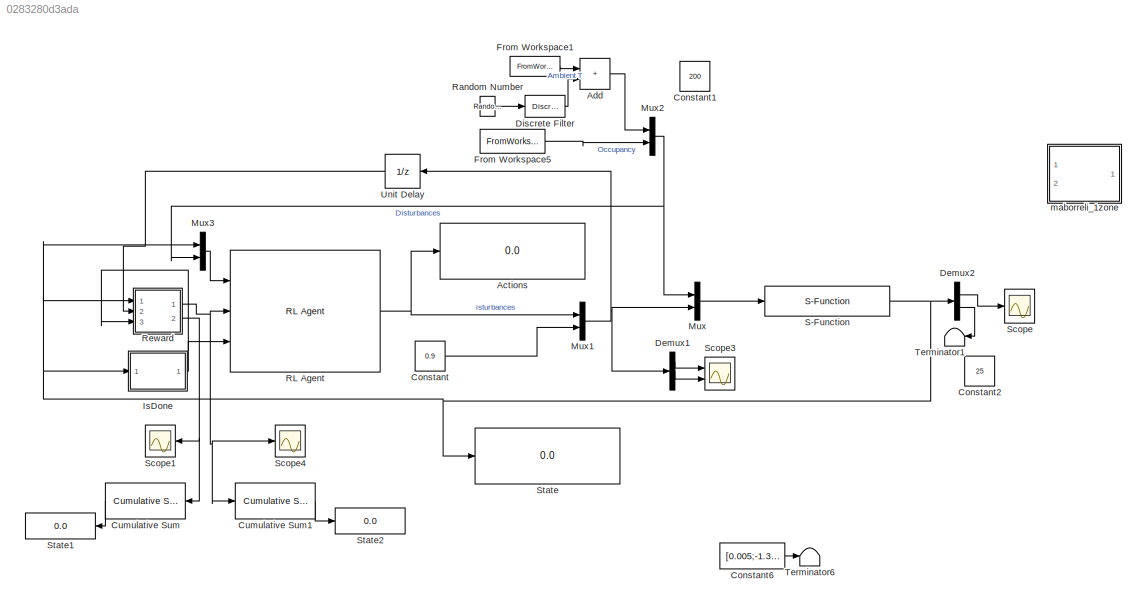
MODEL slx_0283280d3ada
KIND model
CONFIG AbsTol = auto
CONFIG EnableMultiTasking = on
CONFIG FixedStep = 2
CONFIG MaxStep = auto
CONFIG MinStep = auto
CONFIG RelTol = 1e-3
CONFIG SampleTimeConstraint = Unconstrained
CONFIG SolverName = ode45
CONFIG StartTime = 0.0
CONFIG StopTime = 3600*24*3
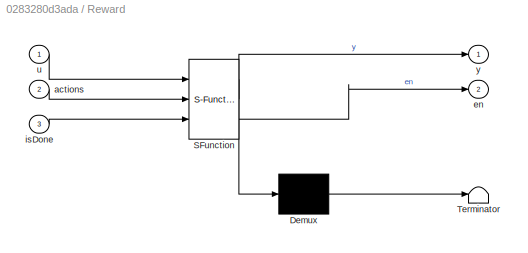
BLOCK [SubSystem]  Reward
  ErrorFcn = Stateflow.Translate.translate
  PermitHierarchicalResolution = ExplicitOnly
  Ports = [3, 2]
  RequestExecContextInheritance = off
  SFBlockType = MATLAB Function
  SystemSampleTime = Ts2
  TreatAsAtomicUnit = on
BLOCK [Demux]  Reward/ Demux 
  Outputs = 1
  Ports = [1, 1]
BLOCK [S-Function]  Reward/ SFunction 
  EnableBusSupport = on
  FunctionName = sf_sfun
  Parameters = beta,high,low
  PortCounts = [3 3]
  Ports = [3, 3]
  SFcnIsStateOwnerBlock = off
  SFunctionDeploymentMode = off
  Tag = Stateflow S-Function 2
BLOCK [Terminator]  Reward/ Terminator 
BLOCK [Inport]  Reward/actions
  Port = 2
BLOCK [Outport]  Reward/en
  Port = 2
BLOCK [Inport]  Reward/isDone
  Port = 3
BLOCK [Inport]  Reward/u
BLOCK [Outport]  Reward/y
BLOCK [Display] Actions
  Decimation = 1
  Ports = [1]
BLOCK [Sum] Add
  IconShape = rectangular
  Ports = [2, 1]
BLOCK [Constant] Constant
  Value = 0.9
BLOCK [Constant] Constant1
  Commented = on
  Value = 200
BLOCK [Constant] Constant2
  Value = 25
BLOCK [Constant] Constant6
  Value = [0.005;-1.332;0.8]
BLOCK [Reference] Cumulative Sum  REF=dspmathops/Cumulative
Sum
  Ports = [1, 1]
  SourceBlock = dspmathops/Cumulative\nSum
  SourceProductBaseCode = DS
  SourceType = Cumulative Sum
  UserDataPersistent = on
BLOCK [Reference] Cumulative Sum1  REF=dspmathops/Cumulative
Sum
  Ports = [1, 1]
  SourceBlock = dspmathops/Cumulative\nSum
  SourceProductBaseCode = DS
  SourceType = Cumulative Sum
  UserDataPersistent = on
BLOCK [Demux] Demux1
  Outputs = 3
  Ports = [1, 3]
BLOCK [Demux] Demux2
  Outputs = 2
  Ports = [1, 2]
BLOCK [DiscreteFilter] Discrete Filter
  Commented = on
  Denominator = den
  InputPortMap = u0
  Numerator = num
  Ports = [1, 1]
  SampleTime = 5400
BLOCK [FromWorkspace] From Workspace1
  OutDataTypeStr = double
  SampleTime = Ts
  VariableName = Ts_struct
BLOCK [FromWorkspace] From Workspace5
  OutDataTypeStr = double
  SampleTime = Ts
  VariableName = Pds_struct
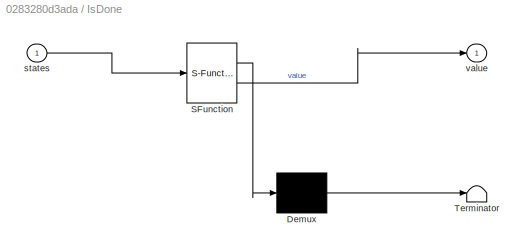
BLOCK [SubSystem] IsDone
  ErrorFcn = Stateflow.Translate.translate
  PermitHierarchicalResolution = ExplicitOnly
  Ports = [1, 1]
  RequestExecContextInheritance = off
  SFBlockType = MATLAB Function
  SystemSampleTime = Ts2
  TreatAsAtomicUnit = on
BLOCK [Demux] IsDone/ Demux 
  Outputs = 1
  Ports = [1, 1]
BLOCK [S-Function] IsDone/ SFunction 
  EnableBusSupport = on
  FunctionName = sf_sfun
  PortCounts = [1 2]
  Ports = [1, 2]
  SFcnIsStateOwnerBlock = off
  SFunctionDeploymentMode = off
  Tag = Stateflow S-Function 1
BLOCK [Terminator] IsDone/ Terminator 
BLOCK [Inport] IsDone/states
BLOCK [Outport] IsDone/value
BLOCK [Mux] Mux
  DisplayOption = bar
  Inputs = 2
  Ports = [2, 1]
BLOCK [Mux] Mux1
  DisplayOption = bar
  Inputs = 2
  Ports = [2, 1]
BLOCK [Mux] Mux2
  DisplayOption = bar
  Inputs = 2
  Ports = [2, 1]
BLOCK [Mux] Mux3
  DisplayOption = bar
  Inputs = 2
  Ports = [2, 1]
BLOCK [Reference] RL Agent  REF=rllib/RL Agent
  Ports = [3, 1]
  SourceBlock = rllib/RL Agent
  SourceProductBaseCode = RL
  SourceType = RL Agent
BLOCK [RandomNumber] Random Number
  Commented = on
  SampleTime = 1800
  Variance = 0.5
BLOCK [S-Function] S-Function
  EnableBusSupport = off
  FunctionName = maborrelli_sfunc_1zone
  Parameters = ci,params1,60
  Ports = [1, 1]
  SFcnIsStateOwnerBlock = off
  SFunctionDeploymentMode = off
BLOCK [Scope] Scope
  Floating = off
  NumInputPorts = 1
  Ports = [1]
  ScopeSpecificationString = Simulink.scopes.TimeScopeBlockCfg('CurrentConfiguration', extmgr.ConfigurationSet(extmgr.Configuration('Core','General UI',true),extmgr.Configuration('Core','Source UI',true),extmgr.Configuration('Sources','WiredSimulink',true,'DataLoggingVariableName','states','DataLoggingSaveFormat','StructureWithTime','DataLoggingDecimation','1','DataLoggingDecimateData',true),extmgr.Configuration('Visuals','Ti...<+1776ch>
BLOCK [Scope] Scope1
  Floating = off
  NumInputPorts = 1
  Ports = [1]
  ScopeSpecificationString = Simulink.scopes.TimeScopeBlockCfg('CurrentConfiguration', extmgr.ConfigurationSet(extmgr.Configuration('Core','General UI',true),extmgr.Configuration('Core','Source UI',true),extmgr.Configuration('Sources','WiredSimulink',true,'DataLoggingVariableName','ScopeData1','DataLoggingSaveFormat','StructureWithTime','DataLoggingDecimation','1','DataLoggingDecimateData',true),extmgr.Configuration('Visuals'...<+1792ch>
BLOCK [Scope] Scope3
  Floating = off
  NumInputPorts = 2
  Ports = [2]
  ScopeSpecificationString = Simulink.scopes.TimeScopeBlockCfg('CurrentConfiguration', extmgr.ConfigurationSet(extmgr.Configuration('Core','General UI',true),extmgr.Configuration('Core','Source UI',true),extmgr.Configuration('Sources','WiredSimulink',true,'DataLoggingVariableName','inputs','DataLoggingSaveFormat','StructureWithTime','DataLoggingDecimation','1','DataLoggingDecimateData',true),extmgr.Configuration('Visuals','Ti...<+2447ch>
BLOCK [Scope] Scope4
  Floating = off
  NumInputPorts = 1
  Ports = [1]
  ScopeSpecificationString = Simulink.scopes.TimeScopeBlockCfg('CurrentConfiguration', extmgr.ConfigurationSet(extmgr.Configuration('Core','General UI',true),extmgr.Configuration('Core','Source UI',true),extmgr.Configuration('Sources','WiredSimulink',true,'DataLoggingVariableName','T3','DataLoggingSaveFormat','StructureWithTime','DataLoggingDecimation','1','DataLoggingDecimateData',true),extmgr.Configuration('Visuals','Time D...<+1778ch>
BLOCK [Display] State
  Decimation = 1
  Ports = [1]
BLOCK [Display] State1
  Decimation = 1
  Ports = [1]
BLOCK [Display] State2
  Decimation = 1
  Ports = [1]
BLOCK [Terminator] Terminator1
BLOCK [Terminator] Terminator6
BLOCK [UnitDelay] Unit Delay
  HasFrameUpgradeWarning = on
  SampleTime = Ts2
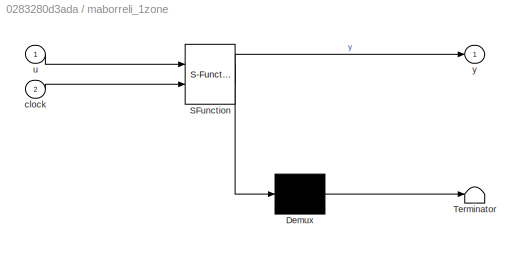
BLOCK [SubSystem] maborreli_1zone
  Commented = on
  ErrorFcn = Stateflow.Translate.translate
  PermitHierarchicalResolution = ExplicitOnly
  Ports = [2, 1]
  RequestExecContextInheritance = off
  SFBlockType = MATLAB Function
  SystemSampleTime = Ts
  TreatAsAtomicUnit = on
BLOCK [Demux] maborreli_1zone/ Demux 
  Outputs = 1
  Ports = [1, 1]
BLOCK [S-Function] maborreli_1zone/ SFunction 
  EnableBusSupport = on
  FunctionName = sf_sfun
  Parameters = Ts,ci,params1
  PortCounts = [2 2]
  Ports = [2, 2]
  SFcnIsStateOwnerBlock = off
  SFunctionDeploymentMode = off
  Tag = Stateflow S-Function 3
BLOCK [Terminator] maborreli_1zone/ Terminator 
BLOCK [Inport] maborreli_1zone/clock
  Port = 2
BLOCK [Inport] maborreli_1zone/u
BLOCK [Outport] maborreli_1zone/y
NET  Reward:1 -> Cumulative Sum1:1, RL Agent:2, Scope4:1
NET  Reward:2 -> Cumulative Sum:1, Scope1:1
LINE Add:1 -> Mux2:1
LINE Constant6:1 -> Terminator6:1
LINE Constant:1 -> Mux1:2
LINE Cumulative Sum1:1 -> State2:1
LINE Cumulative Sum:1 -> State1:1
LINE Demux1:1 -> Scope3:1
LINE Demux1:2 -> Scope3:2
LINE Demux2:1 -> Scope:1
LINE Demux2:2 -> Terminator1:1
LINE Discrete Filter:1 -> Add:2
LINE From Workspace1:1 -> Add:1
LINE From Workspace5:1 -> Mux2:2
NET IsDone:1 ->  Reward:3, RL Agent:3
NET Mux1:1 -> Demux1:1, Mux:2, Unit Delay:1
NET Mux2:1 -> Mux3:2, Mux:1
LINE Mux3:1 -> RL Agent:1
LINE Mux:1 -> S-Function:1
NET RL Agent:1 -> Actions:1, Mux1:1
LINE Random Number:1 -> Discrete Filter:1
NET S-Function:1 ->  Reward:1, Demux2:1, IsDone:1, Mux3:1, State:1
LINE Unit Delay:1 ->  Reward:2
note: NET lines group one-source signal fan-out (src -> all destinations, sorted); 1:1 wires keep LINE
CHART IsDone states=1 transitions=1
  STATE_LABEL 'eML_blk_kernel()'
  STATE_LABEL "SCRIPT:\nfunction value = fcn(states)\n low = -20;\n max = 55;\n value = 0; \n %disp(length(block.InputPort(1).Data))\n for i=1:length(states)\n     %disp(i)\n     if i == 3\n         break\n     end\n     aux = states(i);\n     %disp(aux)\n     if (aux < low || aux > max) \n        %disp(abs(aux - low))\n        value = 1;\n        break\n     end\n     %disp('if3')\n end\n"
CHART  Reward states=1 transitions=1
  STATE_LABEL 'eML_blk_kernel()'
  STATE_LABEL "SCRIPT:\nfunction [y, en] = reward(u, actions, isDone, low, high, beta)\n ms = actions(1);\n Dt = actions(2);\n %Añadir energía:\n e = ((-1012/4)*ms*Dt+ 65*(ms)^2)/1000;\n reward = -beta* e; \n en = e;\n %disp('reward por energia')\n %disp(reward)\n %disp(length(block.InputPort(1).Data))\n for i=1:1\n     aux = u(i);\n     %disp('estado')\n     %disp(aux)\n     if (aux < low || aux > high)\n        reward = rewar...<+340ch>"
CHART maborreli_1zone states=1 transitions=1
  STATE_LABEL 'eML_blk_kernel()'
  STATE_LABEL 'SCRIPT:\nfunction y = fcn(u,params1, ci, Ts, clock)\nST = Ts;\nparams = params1;\nglobal states;\ndT = [0;0];\ndelta=u(5);\nif clock == 0\n    dT = ci;\nelse\n    x = states;\n    dT(1)=x(1)+(ST*u(3)*params.cp*((delta*x(1)+(1-delta)*u(1)+u(4))-x(1))+ ST*(x(2)-x(1))/params.R+...\n        ST*(u(1)-x(1))/params.Roa+ST*u(2))/params.C1;\n    dT(2)=x(2)+ST*(x(1)-x(2))/params.R/params.C2;\nend\nstates = dT;\ny = dT;\n'
CHART  states=0 transitions=0
CHART  states=0 transitions=0
CHART  states=0 transitions=0
